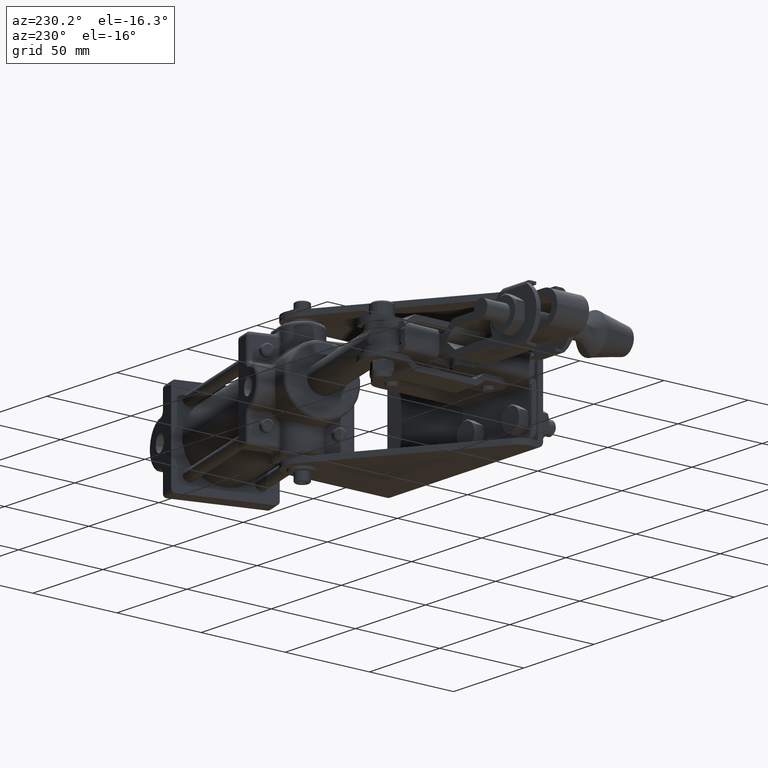
[diagram: clean part render]
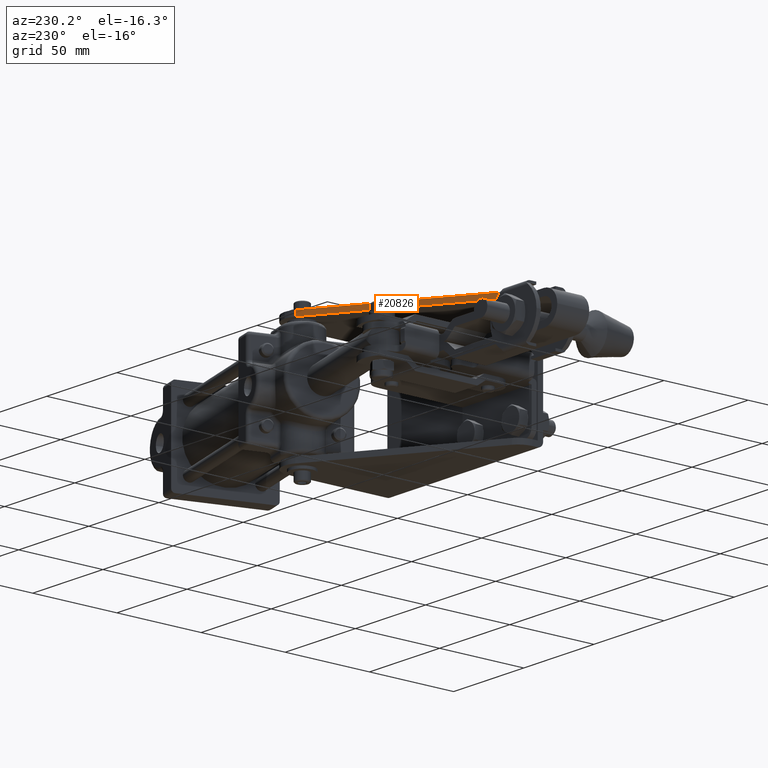
[diagram: same view with one face highlighted and labeled with its STEP entity id]
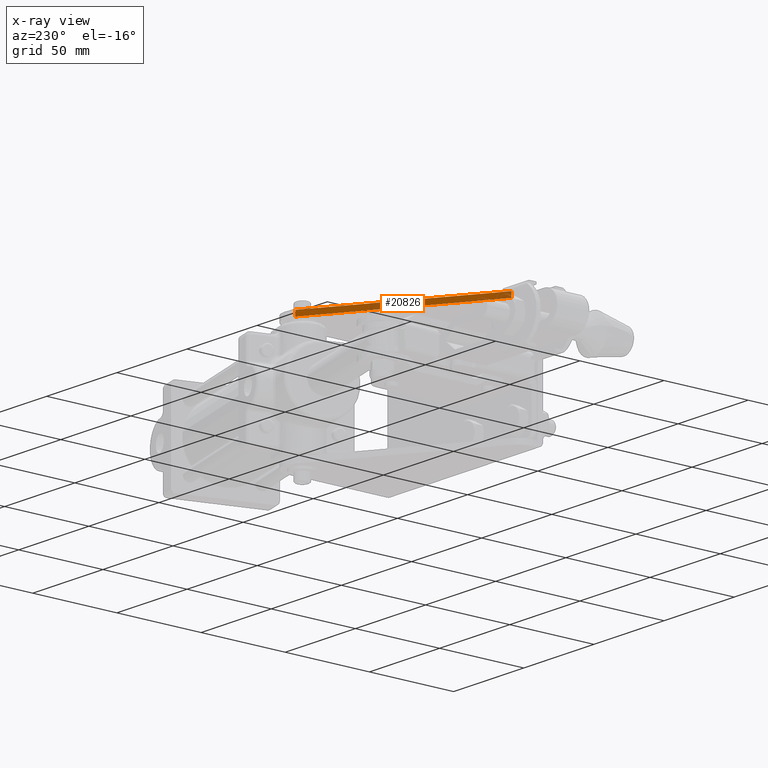
[diagram: x-ray of the same camera — body ghosted, the highlighted face saturated]
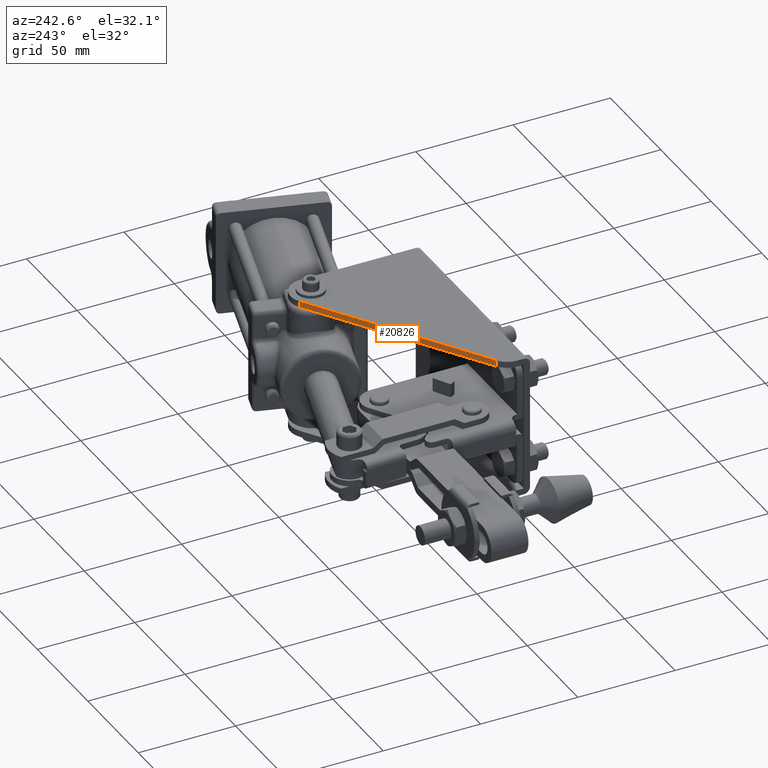
[diagram: same view with one face highlighted and labeled with its STEP entity id]
A machine part, auxiliary view. The second image highlights one B-rep face of the part: STEP entity #20826.
The next image is the same camera in x-ray: the body ghosted, the highlighted face saturated — about 19% of this face is hidden behind the body in this view.
A second angle (auxiliary view) of the same face is appended — the face is thin or edge-on in the first view.
In plain terms, the highlighted planar face has unit normal (-0.5461, 0.8377, 0).
Its self-contained STEP definition (entity closure, byte-faithful):
#292 = AXIS2_PLACEMENT_3D ( 'NONE', #27637, #12115, #30214 ) ;
#3522 = CARTESIAN_POINT ( 'NONE',  ( -45.46076776208769800, 11.75889381593976800, 33.29999999999999000 ) ) ;
#3712 = LINE ( 'NONE', #5778, #17508 ) ;
#3937 = VECTOR ( 'NONE', #29306, 1000.000000000000000 ) ;
#4457 = DIRECTION ( 'NONE',  ( 0.8377351338492619000, 0.5460767762087666000, 5.190642210274416100E-017 ) ) ;
#4620 = CARTESIAN_POINT ( 'NONE',  ( 53.13850633460190700, 76.03072814601696900, 36.49999999999999300 ) ) ;
#5702 = CARTESIAN_POINT ( 'NONE',  ( 40.96619384980791500, 68.09621890541724600, 33.29999999999999000 ) ) ;
#5778 = CARTESIAN_POINT ( 'NONE',  ( 40.96619384980791500, 68.09621890541724600, 33.29999999999999000 ) ) ;
#6295 = EDGE_CURVE ( 'NONE', #9146, #18692, #6712, .T. ) ;
#6712 = LINE ( 'NONE', #12102, #26574 ) ;
#7622 = EDGE_CURVE ( 'NONE', #18692, #15160, #3712, .T. ) ;
#9085 = CARTESIAN_POINT ( 'NONE',  ( -45.46076776208769800, 11.75889381593976800, 33.29999999999999000 ) ) ;
#9146 = VERTEX_POINT ( 'NONE', #9085 ) ;
#9815 = DIRECTION ( 'NONE',  ( 0.8377351338492619000, 0.5460767762087666000, 5.190642210274416100E-017 ) ) ;
#10422 = VERTEX_POINT ( 'NONE', #23778 ) ;
#11938 = CARTESIAN_POINT ( 'NONE',  ( 40.96619384980791500, 68.09621890541724600, 36.49999999999999300 ) ) ;
#12102 = CARTESIAN_POINT ( 'NONE',  ( 53.13850633460190700, 76.03072814601696900, 33.29999999999999000 ) ) ;
#12115 = DIRECTION ( 'NONE',  ( -0.5460767762087666000, 0.8377351338492619000, 7.962952347062398500E-017 ) ) ;
#12467 = VECTOR ( 'NONE', #9815, 1000.000000000000100 ) ;
#14843 = DIRECTION ( 'NONE',  ( -0.0000000000000000000, -9.505334114941411000E-017, 1.000000000000000000 ) ) ;
#15160 = VERTEX_POINT ( 'NONE', #11938 ) ;
#16142 = ORIENTED_EDGE ( 'NONE', *, *, #7622, .F. ) ;
#17220 = PLANE ( 'NONE',  #292 ) ;
#17508 = VECTOR ( 'NONE', #14843, 1000.000000000000000 ) ;
#18692 = VERTEX_POINT ( 'NONE', #5702 ) ;
#19367 = LINE ( 'NONE', #4620, #12467 ) ;
#20826 = ADVANCED_FACE ( 'NONE', ( #22026 ), #17220, .T. ) ;
#22026 = FACE_OUTER_BOUND ( 'NONE', #30886, .T. ) ;
#23778 = CARTESIAN_POINT ( 'NONE',  ( -45.46076776208768400, 11.75889381593976800, 36.49999999999998600 ) ) ;
#26497 = ORIENTED_EDGE ( 'NONE', *, *, #6295, .F. ) ;
#26574 = VECTOR ( 'NONE', #4457, 1000.000000000000100 ) ;
#27402 = EDGE_CURVE ( 'NONE', #10422, #15160, #19367, .T. ) ;
#27637 = CARTESIAN_POINT ( 'NONE',  ( 53.13850633460190700, 76.03072814601696900, 33.29999999999999000 ) ) ;
#27759 = ORIENTED_EDGE ( 'NONE', *, *, #28638, .T. ) ;
#28638 = EDGE_CURVE ( 'NONE', #9146, #10422, #31481, .T. ) ;
#29036 = ORIENTED_EDGE ( 'NONE', *, *, #27402, .T. ) ;
#29306 = DIRECTION ( 'NONE',  ( -0.0000000000000000000, -9.505334114941411000E-017, 1.000000000000000000 ) ) ;
#30214 = DIRECTION ( 'NONE',  ( 0.8377351338492619000, 0.5460767762087666000, 5.190642210274416100E-017 ) ) ;
#30886 = EDGE_LOOP ( 'NONE', ( #26497, #27759, #29036, #16142 ) ) ;
#31481 = LINE ( 'NONE', #3522, #3937 ) ;